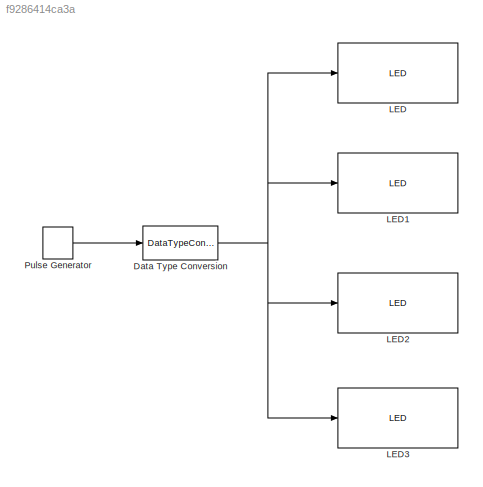
MODEL slx_f9286414ca3a
KIND model
CONFIG AbsTol = auto
CONFIG EnableMultiTasking = on
CONFIG FixedStep = auto
CONFIG MaxStep = auto
CONFIG MinStep = auto
CONFIG RelTol = 1e-3
CONFIG SampleTimeConstraint = Unconstrained
CONFIG Solver = FixedStepAuto
CONFIG SolverName = FixedStepAuto
CONFIG StartTime = 0.0
CONFIG StopTime = 10.0
BLOCK [DataTypeConversion] Data Type Conversion
  OutDataTypeStr = boolean
  RndMeth = Floor
  SaturateOnIntegerOverflow = off
BLOCK [Reference] LED  REF=ec_arm_cortex_a_lib/LED
  Ports = [1]
  SourceBlock = ec_arm_cortex_a_lib/LED
  SourceType = LED Write
BLOCK [Reference] LED1  REF=ec_arm_cortex_a_lib/LED
  Ports = [1]
  SourceBlock = ec_arm_cortex_a_lib/LED
  SourceType = LED Write
BLOCK [Reference] LED2  REF=ec_arm_cortex_a_lib/LED
  Ports = [1]
  SourceBlock = ec_arm_cortex_a_lib/LED
  SourceType = LED Write
BLOCK [Reference] LED3  REF=ec_arm_cortex_a_lib/LED
  Ports = [1]
  SourceBlock = ec_arm_cortex_a_lib/LED
  SourceType = LED Write
BLOCK [DiscretePulseGenerator] Pulse Generator
  Period = 1
  Ports = [0, 1]
  PulseType = Time based
  PulseWidth = 50
NET Data Type Conversion:1 -> LED1:1, LED2:1, LED3:1, LED:1
LINE Pulse Generator:1 -> Data Type Conversion:1
note: NET lines group one-source signal fan-out (src -> all destinations, sorted); 1:1 wires keep LINE
